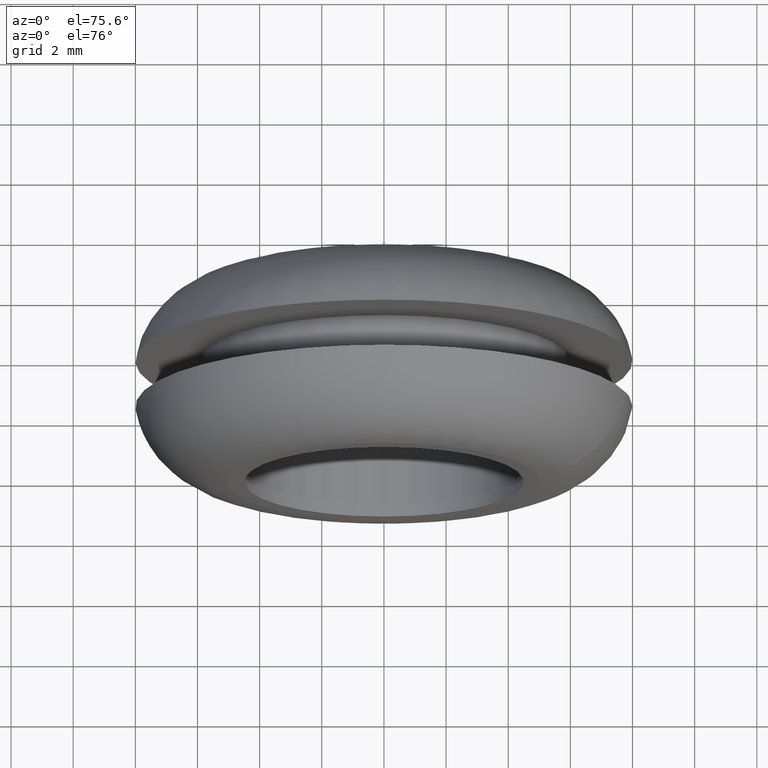
[diagram: clean part render]
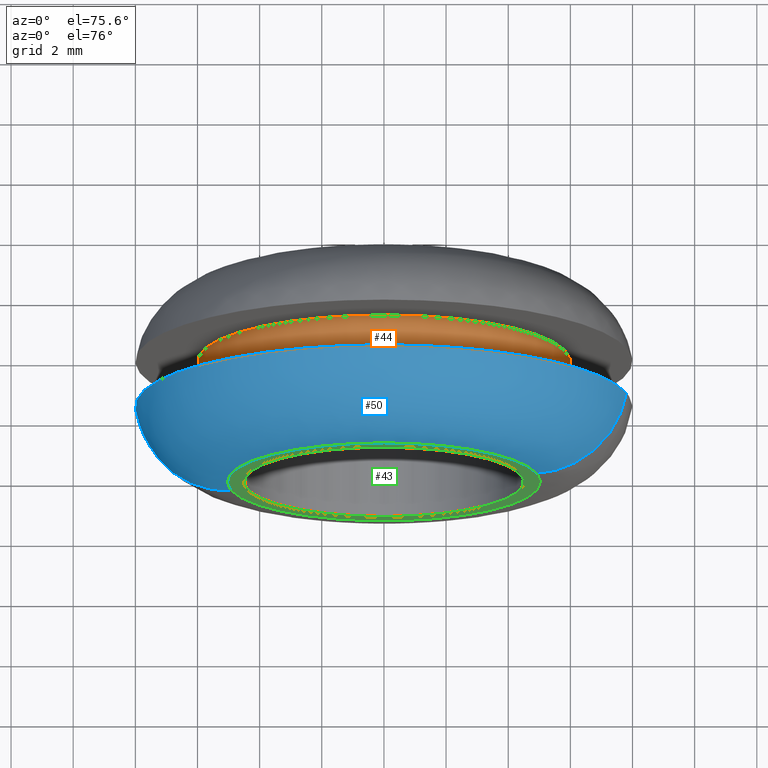
[diagram: same view with three faces highlighted in distinct colors, each labeled with its STEP entity id]
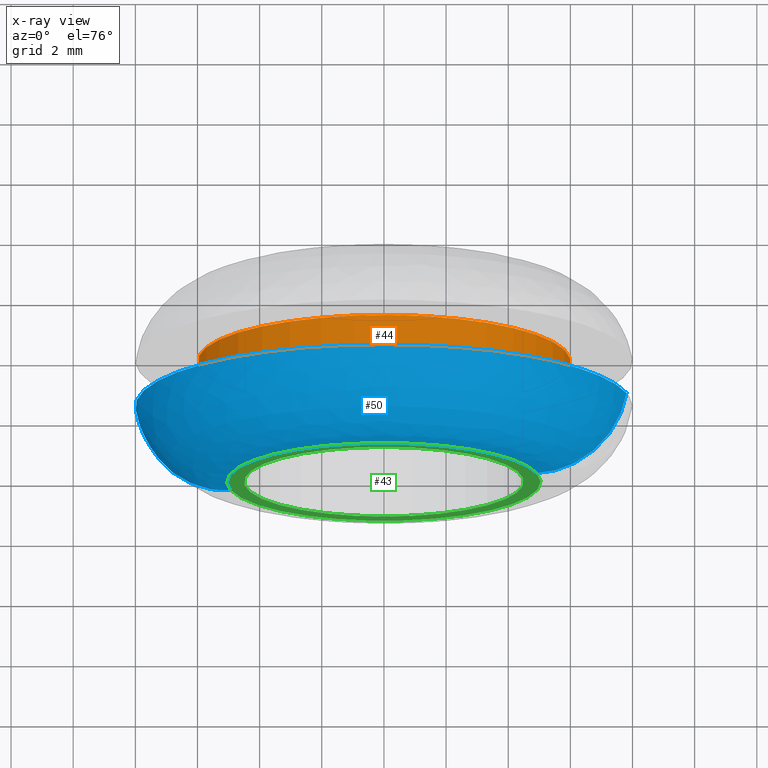
[diagram: x-ray of the same camera — body ghosted, the three highlighted faces saturated]
A machine part, auxiliary view with three faces highlighted in distinct colors.
The next image is the same camera in x-ray (body ghosted, the three faces saturated) — at least one of them is partly hidden behind the body in this view.
Their STEP definitions:

[orange] entity #44 — the highlighted cylindrical surface (partial cylindrical patch) has radius 6 mm, axis along (0, 1, 0).
#44=ADVANCED_FACE('',(#97),#96,.T.);
#96=CYLINDRICAL_SURFACE('',#203,6.00000000000E+000);
#97=FACE_OUTER_BOUND('',#204,.T.);
#200=CARTESIAN_POINT('',(4.70539397474E-016,4.03750000000E+000,1.82735762207E-016));
#201=DIRECTION('',(1.41441697970E-016,1.00000000000E+000,1.81699675896E-015));
#202=DIRECTION('',(-9.93009526364E-001,-7.40148683083E-017,1.18034234657E-001));
#203=AXIS2_PLACEMENT_3D('',#200,#201,#202);
#204=EDGE_LOOP('',(#352,#353,#354,#355));
#352=ORIENTED_EDGE('',*,*,#402,.T.);
#353=ORIENTED_EDGE('',*,*,#424,.F.);
#354=ORIENTED_EDGE('',*,*,#416,.F.);
#355=ORIENTED_EDGE('',*,*,#425,.T.);
#402=EDGE_CURVE('',#475,#467,#476,.T.);
#416=EDGE_CURVE('',#566,#573,#574,.T.);
#424=EDGE_CURVE('',#573,#467,#628,.T.);
#425=EDGE_CURVE('',#566,#475,#634,.T.);
#467=VERTEX_POINT('',#701);
#475=VERTEX_POINT('',#707);
#476=CIRCLE('',#711,6.00000000000E+000);
#566=VERTEX_POINT('',#772);
#573=VERTEX_POINT('',#777);
#574=CIRCLE('',#781,6.00000000000E+000);
#628=(BOUNDED_CURVE() B_SPLINE_CURVE(1,(#816,#817),.UNSPECIFIED.,.F.,.F.) B_SPLINE_CURVE_WITH_KNOTS((2,2),(8.33333134656E-002,9.16666653270E-001),.UNSPECIFIED.) CURVE() GEOMETRIC_REPRESENTATION_ITEM() RATIONAL_B_SPLINE_CURVE((1.00000000000E+000,1.00000000000E+000)) REPRESENTATION_ITEM('') );
#634=(BOUNDED_CURVE() B_SPLINE_CURVE(1,(#818,#819),.UNSPECIFIED.,.F.,.F.) B_SPLINE_CURVE_WITH_KNOTS((2,2),(8.33333333335E-002,9.16666666667E-001),.UNSPECIFIED.) CURVE() GEOMETRIC_REPRESENTATION_ITEM() RATIONAL_B_SPLINE_CURVE((7.50000000000E-001,7.50000000000E-001)) REPRESENTATION_ITEM('') );
#701=CARTESIAN_POINT('',(-5.95805715818E+000,4.00000000000E+000,7.08205407903E-001));
#707=CARTESIAN_POINT('',(5.95793466628E+000,4.00000000000E+000,-7.09235160062E-001));
#708=CARTESIAN_POINT('',(1.73239200763E-012,4.00000000000E+000,3.81339404498E-012));
#709=DIRECTION('',(0.00000000000E+000,-1.00000000000E+000,-0.00000000000E+000));
#710=DIRECTION('',(-2.88741253129E-013,0.00000000000E+000,-1.00000000000E+000));
#711=AXIS2_PLACEMENT_3D('',#708,#709,#710);
#772=CARTESIAN_POINT('',(5.95793466628E+000,2.50000000000E+000,-7.09235160062E-001));
#777=CARTESIAN_POINT('',(-5.95805715818E+000,2.50000000000E+000,7.08205407903E-001));
#778=CARTESIAN_POINT('',(1.78168590992E-012,2.50000000000E+000,3.91464638483E-012));
#779=DIRECTION('',(4.50068612245E-015,-1.00000000000E+000,2.90851502930E-014));
#780=DIRECTION('',(-2.96818125634E-013,-2.90851502930E-014,-1.00000000000E+000));
#781=AXIS2_PLACEMENT_3D('',#778,#779,#780);
#816=CARTESIAN_POINT('',(-5.95805715818E+000,2.49999996424E+000,7.08205407941E-001));
#817=CARTESIAN_POINT('',(-5.95805715818E+000,3.99999997589E+000,7.08205407941E-001));
#818=CARTESIAN_POINT('',(5.95805715818E+000,2.50000000000E+000,-7.08205407941E-001));
#819=CARTESIAN_POINT('',(5.95805715818E+000,4.00000000000E+000,-7.08205407941E-001));

[blue] entity #50 — the highlighted face is a freeform B-spline surface patch.
#50=ADVANCED_FACE('',(#157),#156,.T.);
#156=( BOUNDED_SURFACE() B_SPLINE_SURFACE( 2,2,((#272,#273,#274,#275,#276),(#277,#278,#279,#280,#281),(#282,#283,#284,#285,#286),(#287,#288,#289,#290,#291),(#292,#293,#294,#295,#296)), .UNSPECIFIED.,.F.,.F.,.F.) B_SPLINE_SURFACE_WITH_KNOTS((3,2,3),(3,2,3),(0.00000000000E+000,5.00000000000E-001,1.00000000000E+000),(0.00000000000E+000,5.00000000000E-001,1.00000000000E+000), .UNSPECIFIED. ) GEOMETRIC_REPRESENTATION_ITEM() RATIONAL_B_SPLINE_SURFACE(((1.00000000000E+000,7.63668789557E-001,1.00000000000E+000,7.63668789557E-001,1.00000000000E+000),(7.07106781187E-001,5.39995379676E-001,7.07106781187E-001,5.39995379676E-001,7.07106781187E-001),(1.00000000000E+000,7.63668789557E-001,1.00000000000E+000,7.63668789557E-001,1.00000000000E+000),(7.07106781187E-001,5.39995379676E-001,7.07106781187E-001,5.39995379676E-001,7.07106781187E-001),(1.00000000000E+000,7.63668789557E-001,1.00000000000E+000,7.63668789557E-001,1.00000000000E+000))) REPRESENTATION_ITEM('') SURFACE() );
#157=FACE_OUTER_BOUND('',#297,.T.);
#272=CARTESIAN_POINT('',(7.80629619409E+000,2.50085987914E+000,1.75044608514E+000));
#273=CARTESIAN_POINT('',(7.39454615052E+000,-5.81520701020E-016,1.65811724776E+000));
#274=CARTESIAN_POINT('',(4.91978990655E+000,-8.88178419700E-016,1.10318988257E+000));
#275=CARTESIAN_POINT('',(2.44503366258E+000,-1.16304140204E-015,5.48262517369E-001));
#276=CARTESIAN_POINT('',(2.03328361902E+000,2.50085987914E+000,4.55933679993E-001));
#277=CARTESIAN_POINT('',(6.05585010895E+000,2.50085987914E+000,9.55674227922E+000));
#278=CARTESIAN_POINT('',(5.73642890276E+000,2.40873761163E-016,9.05266339828E+000));
#279=CARTESIAN_POINT('',(3.81660002399E+000,-2.60141436227E-016,6.02297978912E+000));
#280=CARTESIAN_POINT('',(1.89677114522E+000,-1.16304140204E-015,2.99329617995E+000));
#281=CARTESIAN_POINT('',(1.57734993902E+000,2.50085987914E+000,2.48921729901E+000));
#282=CARTESIAN_POINT('',(-1.75044608514E+000,2.50085987914E+000,7.80629619409E+000));
#283=CARTESIAN_POINT('',(-1.65811724776E+000,5.81520701020E-016,7.39454615052E+000));
#284=CARTESIAN_POINT('',(-1.10318988257E+000,-4.44089209850E-016,4.91978990655E+000));
#285=CARTESIAN_POINT('',(-5.48262517369E-001,-5.81520701020E-016,2.44503366258E+000));
#286=CARTESIAN_POINT('',(-4.55933679993E-001,2.50085987914E+000,2.03328361902E+000));
#287=CARTESIAN_POINT('',(-9.55674227922E+000,2.50085987914E+000,6.05585010895E+000));
#288=CARTESIAN_POINT('',(-9.05266339828E+000,-3.40646939857E-016,5.73642890276E+000));
#289=CARTESIAN_POINT('',(-6.02297978912E+000,-7.04230646077E-016,3.81660002399E+000));
#290=CARTESIAN_POINT('',(-2.99329617995E+000,-1.16304140204E-015,1.89677114522E+000));
#291=CARTESIAN_POINT('',(-2.48921729901E+000,2.50085987914E+000,1.57734993902E+000));
#292=CARTESIAN_POINT('',(-7.80629619409E+000,2.50085987914E+000,-1.75044608514E+000));
#293=CARTESIAN_POINT('',(-7.39454615052E+000,-1.16304140204E-015,-1.65811724776E+000));
#294=CARTESIAN_POINT('',(-4.91978990655E+000,-1.33226762955E-015,-1.10318988257E+000));
#295=CARTESIAN_POINT('',(-2.44503366258E+000,-1.16304140204E-015,-5.48262517369E-001));
#296=CARTESIAN_POINT('',(-2.03328361902E+000,2.50085987914E+000,-4.55933679993E-001));
#297=EDGE_LOOP('',(#384,#385,#386,#387,#388,#389));
#384=ORIENTED_EDGE('',*,*,#418,.F.);
#385=ORIENTED_EDGE('',*,*,#420,.F.);
#386=ORIENTED_EDGE('',*,*,#430,.F.);
#387=ORIENTED_EDGE('',*,*,#411,.T.);
#388=ORIENTED_EDGE('',*,*,#410,.T.);
#389=ORIENTED_EDGE('',*,*,#431,.T.);
#410=EDGE_CURVE('',#530,#531,#532,.T.);
#411=EDGE_CURVE('',#538,#530,#539,.T.);
#418=EDGE_CURVE('',#586,#587,#588,.T.);
#420=EDGE_CURVE('',#594,#586,#601,.T.);
#430=EDGE_CURVE('',#538,#594,#664,.T.);
#431=EDGE_CURVE('',#531,#587,#670,.T.);
#530=VERTEX_POINT('',#746);
#531=VERTEX_POINT('',#747);
#532=CIRCLE('',#751,7.99999992893E+000);
#538=VERTEX_POINT('',#752);
#539=CIRCLE('',#756,8.00000051559E+000);
#586=VERTEX_POINT('',#786);
#587=VERTEX_POINT('',#787);
#588=CIRCLE('',#791,5.04196000018E+000);
#594=VERTEX_POINT('',#792);
#601=CIRCLE('',#800,5.04196000018E+000);
#664=(BOUNDED_CURVE() B_SPLINE_CURVE(2,(#832,#833,#834),.UNSPECIFIED.,.F.,.F.) B_SPLINE_CURVE_WITH_KNOTS((3,3),(1.12082810208E-004,5.00000000000E-001),.UNSPECIFIED.) CURVE() GEOMETRIC_REPRESENTATION_ITEM() RATIONAL_B_SPLINE_CURVE((9.99894069087E-001,7.63721766889E-001,1.00000000000E+000)) REPRESENTATION_ITEM('') );
#670=(BOUNDED_CURVE() B_SPLINE_CURVE(3,(#835,#836,#837,#838,#839),.UNSPECIFIED.,.F.,.F.) B_SPLINE_CURVE_WITH_KNOTS((4,1,4),(0.00000000000E+000,2.50000192247E-001,5.00000342841E-001),.UNSPECIFIED.) CURVE() GEOMETRIC_REPRESENTATION_ITEM() RATIONAL_B_SPLINE_CURVE((1.00000000000E+000,1.00000000000E+000,1.00000000000E+000,1.00000000000E+000,1.00000000000E+000)) REPRESENTATION_ITEM('') );
#746=CARTESIAN_POINT('',(0.00000000000E+000,2.50000000000E+000,8.00000000000E+000));
#747=CARTESIAN_POINT('',(-7.80615454963E+000,2.50000000890E+000,-1.75041432347E+000));
#748=CARTESIAN_POINT('',(-3.47376722942E-008,2.50000001199E+000,7.10675225335E-008));
#749=DIRECTION('',(7.70371977755E-034,-1.00000000000E+000,-1.49908881086E-009));
#750=DIRECTION('',(-4.34220907535E-009,1.49908881086E-009,-1.00000000000E+000));
#751=AXIS2_PLACEMENT_3D('',#748,#749,#750);
#752=CARTESIAN_POINT('',(7.80615513893E+000,2.50000363315E+000,1.75041445561E+000));
#753=CARTESIAN_POINT('',(1.52123090125E-007,2.50000188152E+000,-5.15592721406E-007));
#754=DIRECTION('',(2.77129433009E-007,-1.00000000000E+000,-2.35189374963E-007));
#755=DIRECTION('',(-9.86686045895E-001,-2.35189356320E-007,-1.62636548281E-001));
#756=AXIS2_PLACEMENT_3D('',#753,#754,#755);
#786=CARTESIAN_POINT('',(-8.46145699603E-016,1.46708089059E-015,5.04196000037E+000));
#787=CARTESIAN_POINT('',(-4.91978791134E+000,8.63417308164E-018,-1.10319878144E+000));
#788=CARTESIAN_POINT('',(-8.68132232767E-011,2.70459245297E-016,1.84861015384E-010));
#789=DIRECTION('',(-9.52154264755E-034,-1.00000000000E+000,2.37332633589E-016));
#790=DIRECTION('',(1.72183037482E-011,2.37332633589E-016,1.00000000000E+000));
#791=AXIS2_PLACEMENT_3D('',#788,#789,#790);
#792=CARTESIAN_POINT('',(4.91978990669E+000,5.32282205438E-016,1.10318988260E+000));
#797=CARTESIAN_POINT('',(-8.68132232767E-011,2.70459245297E-016,1.84861015384E-010));
#798=DIRECTION('',(-9.52154264755E-034,-1.00000000000E+000,2.37332633589E-016));
#799=DIRECTION('',(1.72183037482E-011,2.37332633589E-016,1.00000000000E+000));
#800=AXIS2_PLACEMENT_3D('',#797,#798,#799);
#832=CARTESIAN_POINT('',(7.80615509212E+000,2.50000361887E+000,1.75041444512E+000));
#833=CARTESIAN_POINT('',(7.39381976652E+000,-5.81610710393E-016,1.65795436693E+000));
#834=CARTESIAN_POINT('',(4.91978990655E+000,-8.88178419700E-016,1.10318988257E+000));
#835=CARTESIAN_POINT('',(-7.80629619409E+000,2.50085987914E+000,-1.75044608514E+000));
#836=CARTESIAN_POINT('',(-7.69726032417E+000,1.81324703746E+000,-1.72599640927E+000));
#837=CARTESIAN_POINT('',(-6.97097169811E+000,5.13471795094E-001,-1.56313696216E+000));
#838=CARTESIAN_POINT('',(-5.59952818757E+000,-4.21968866012E-003,-1.25561110555E+000));
#839=CARTESIAN_POINT('',(-4.91978731482E+000,1.17476727650E-012,-1.10318930141E+000));

[green] entity #43 — the highlighted planar face has unit normal (0, 1, 0).
#43=ADVANCED_FACE('',(#86,#87),#85,.F.);
#85=PLANE('',#197);
#86=FACE_OUTER_BOUND('',#198,.T.);
#87=FACE_BOUND('',#199,.T.);
#194=CARTESIAN_POINT('',(-1.04795170681E+001,-8.76385900000E-016,-1.15965080003E+001));
#195=DIRECTION('',(0.00000000000E+000,1.00000000000E+000,0.00000000000E+000));
#196=DIRECTION('',(0.00000000000E+000,0.00000000000E+000,1.00000000000E+000));
#197=AXIS2_PLACEMENT_3D('',#194,#195,#196);
#198=EDGE_LOOP('',(#346,#347,#348));
#199=EDGE_LOOP('',(#349,#350,#351));
#346=ORIENTED_EDGE('',*,*,#418,.T.);
#347=ORIENTED_EDGE('',*,*,#419,.T.);
#348=ORIENTED_EDGE('',*,*,#420,.T.);
#349=ORIENTED_EDGE('',*,*,#421,.F.);
#350=ORIENTED_EDGE('',*,*,#422,.F.);
#351=ORIENTED_EDGE('',*,*,#423,.F.);
#418=EDGE_CURVE('',#586,#587,#588,.T.);
#419=EDGE_CURVE('',#587,#594,#595,.T.);
#420=EDGE_CURVE('',#594,#586,#601,.T.);
#421=EDGE_CURVE('',#607,#608,#609,.T.);
#422=EDGE_CURVE('',#615,#607,#616,.T.);
#423=EDGE_CURVE('',#608,#615,#622,.T.);
#586=VERTEX_POINT('',#786);
#587=VERTEX_POINT('',#787);
#588=CIRCLE('',#791,5.04196000018E+000);
#594=VERTEX_POINT('',#792);
#595=CIRCLE('',#796,5.04196000018E+000);
#601=CIRCLE('',#800,5.04196000018E+000);
#607=VERTEX_POINT('',#801);
#608=VERTEX_POINT('',#802);
#609=CIRCLE('',#806,4.50000000000E+000);
#615=VERTEX_POINT('',#807);
#616=CIRCLE('',#811,4.50000000000E+000);
#622=CIRCLE('',#815,4.50000000000E+000);
#786=CARTESIAN_POINT('',(-8.46145699603E-016,1.46708089059E-015,5.04196000037E+000));
#787=CARTESIAN_POINT('',(-4.91978791134E+000,8.63417308164E-018,-1.10319878144E+000));
#788=CARTESIAN_POINT('',(-8.68132232767E-011,2.70459245297E-016,1.84861015384E-010));
#789=DIRECTION('',(-9.52154264755E-034,-1.00000000000E+000,2.37332633589E-016));
#790=DIRECTION('',(1.72183037482E-011,2.37332633589E-016,1.00000000000E+000));
#791=AXIS2_PLACEMENT_3D('',#788,#789,#790);
#792=CARTESIAN_POINT('',(4.91978990669E+000,5.32282205438E-016,1.10318988260E+000));
#793=CARTESIAN_POINT('',(-8.68132232767E-011,2.70459245297E-016,1.84861015384E-010));
#794=DIRECTION('',(-9.52154264755E-034,-1.00000000000E+000,2.37332633589E-016));
#795=DIRECTION('',(1.72183037482E-011,2.37332633589E-016,1.00000000000E+000));
#796=AXIS2_PLACEMENT_3D('',#793,#794,#795);
#797=CARTESIAN_POINT('',(-8.68132232767E-011,2.70459245297E-016,1.84861015384E-010));
#798=DIRECTION('',(-9.52154264755E-034,-1.00000000000E+000,2.37332633589E-016));
#799=DIRECTION('',(1.72183037482E-011,2.37332633589E-016,1.00000000000E+000));
#800=AXIS2_PLACEMENT_3D('',#797,#798,#799);
#801=CARTESIAN_POINT('',(-4.46854306288E+000,-1.05054214667E-015,5.31152421835E-001));
#802=CARTESIAN_POINT('',(-2.10942374679E-015,-2.86568356655E-015,-4.50000000000E+000));
#803=CARTESIAN_POINT('',(2.77111666946E-013,-9.94569773634E-016,6.13287198803E-013));
#804=DIRECTION('',(6.19502093115E-017,-1.00000000000E+000,4.15803065092E-016));
#805=DIRECTION('',(-6.16728890179E-014,-4.15803065092E-016,-1.00000000000E+000));
#806=AXIS2_PLACEMENT_3D('',#803,#804,#805);
#807=CARTESIAN_POINT('',(4.46845099908E+000,-9.38924916242E-016,-5.31926375409E-001));
#808=CARTESIAN_POINT('',(2.77111666946E-013,-9.94569773634E-016,6.13287198803E-013));
#809=DIRECTION('',(6.19502093115E-017,-1.00000000000E+000,4.15803065092E-016));
#810=DIRECTION('',(-6.16728890179E-014,-4.15803065092E-016,-1.00000000000E+000));
#811=AXIS2_PLACEMENT_3D('',#808,#809,#810);
#812=CARTESIAN_POINT('',(2.77111666946E-013,-9.94569773634E-016,6.13287198803E-013));
#813=DIRECTION('',(6.19502093115E-017,-1.00000000000E+000,4.15803065092E-016));
#814=DIRECTION('',(-6.16728890179E-014,-4.15803065092E-016,-1.00000000000E+000));
#815=AXIS2_PLACEMENT_3D('',#812,#813,#814);